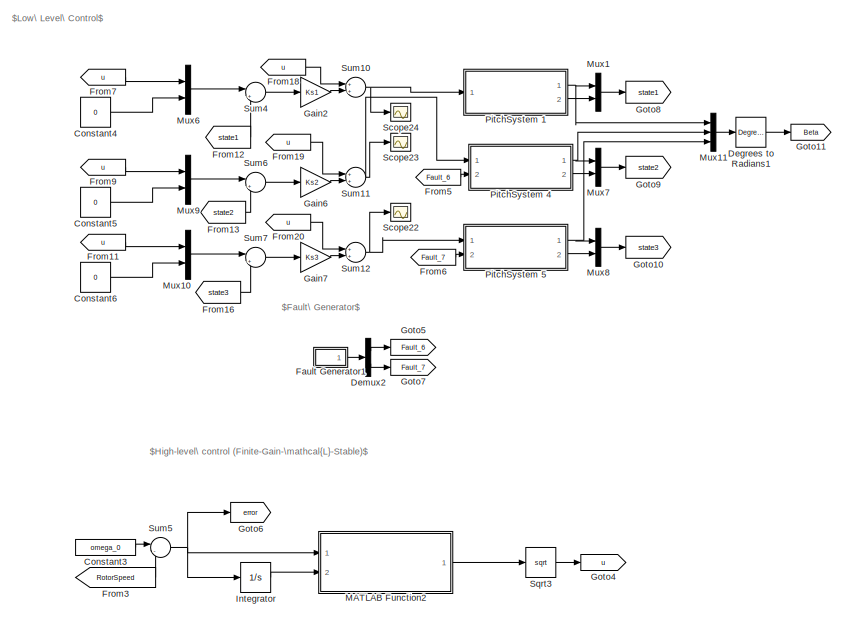
[diagram: root canvas - part 1/2, left side, full height]
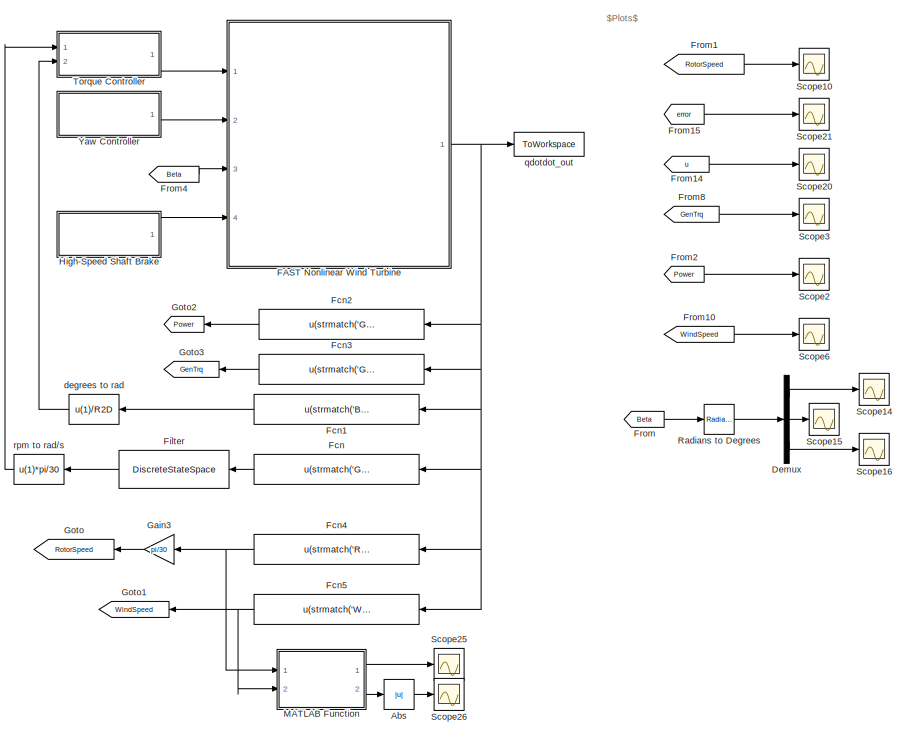
[diagram: root canvas - part 2/2, right side, full height]
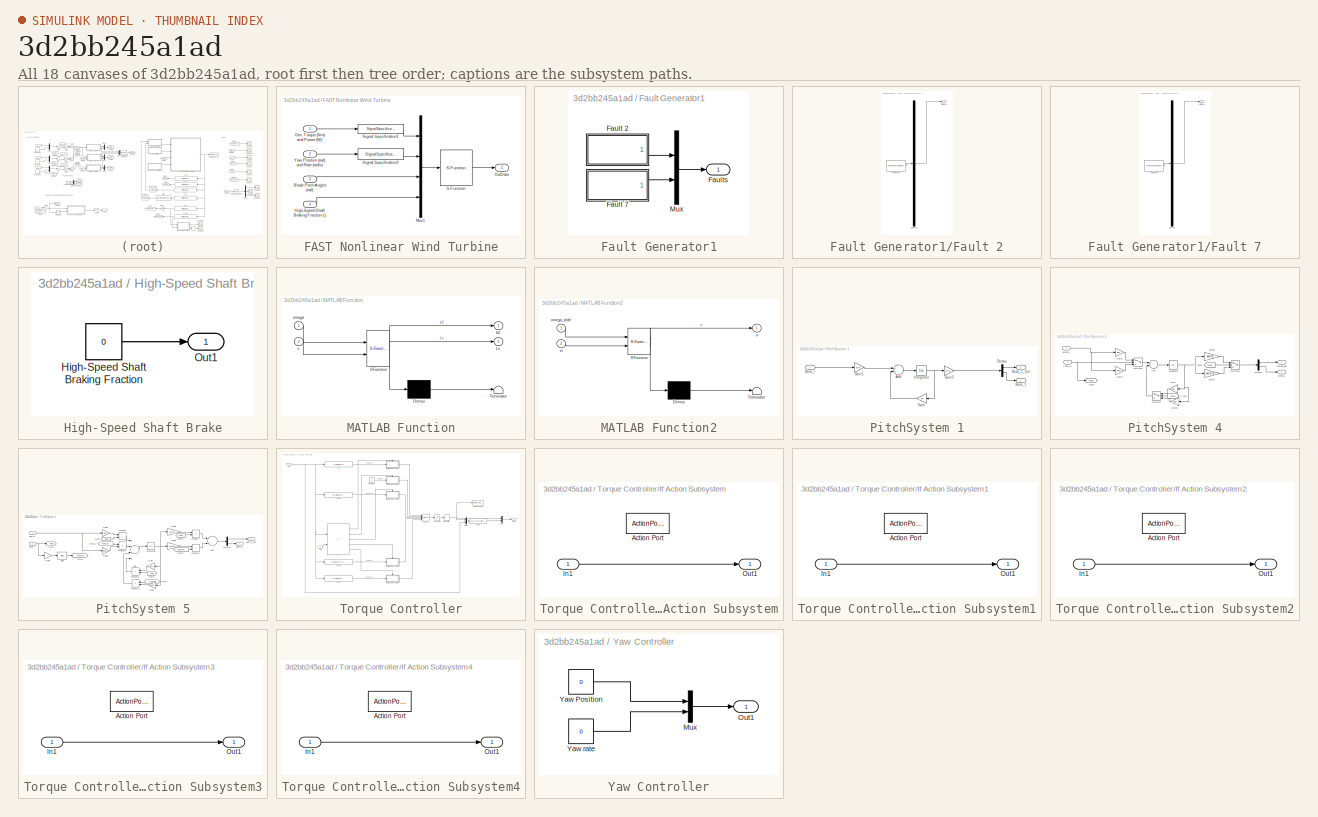
[diagram: thumbnail index - all 18 canvases of the model, root first then tree order]
MODEL slx_3d2bb245a1ad
KIND model
CONFIG AbsTol = auto
CONFIG EnableMultiTasking = on
CONFIG FixedStep = DT
CONFIG MaxStep = DT
CONFIG MinStep = auto
CONFIG RelTol = 1e-3
CONFIG SampleTimeConstraint = Unconstrained
CONFIG Solver = ode4
CONFIG SolverName = ode4
CONFIG StartTime = 0.0
CONFIG StopTime = 700
BLOCK [Abs] Abs
  SaturateOnIntegerOverflow = off
BLOCK [Constant] Constant3
  Value = omega_0
BLOCK [Constant] Constant4
  Value = 0
BLOCK [Constant] Constant5
  Value = 0
BLOCK [Constant] Constant6
  Value = 0
BLOCK [Reference] Degrees to Radians1  REF=simulink_extras/Transformations/Degrees to
Radians
  Ports = [1, 1]
  SourceBlock = simulink_extras/Transformations/Degrees to\nRadians
  SourceProductBaseCode = SL
  SourceProductName = Simulink
  SourceType = DegreesToRadians
BLOCK [Demux] Demux
  DisplayOption = bar
  Outputs = 3
  Ports = [1, 3]
BLOCK [Demux] Demux2
  DisplayOption = bar
  Outputs = 2
  Ports = [1, 2]
BLOCK [SubSystem] FAST Nonlinear Wind Turbine
  Ports = [4, 1]
  RequestExecContextInheritance = off
BLOCK [Inport] FAST Nonlinear Wind Turbine/Blade Pitch Angles (rad)
  IconDisplay = Port number
  Port = 3
BLOCK [Inport] FAST Nonlinear Wind Turbine/Gen. Torque (Nm) and Power (W)
  IconDisplay = Port number
BLOCK [Inport] FAST Nonlinear Wind Turbine/High-Speed Shaft Braking Fraction (-)
  IconDisplay = Port number
  Port = 4
BLOCK [Mux] FAST Nonlinear Wind Turbine/Mux1
  DisplayOption = bar
  Ports = [4, 1]
BLOCK [Outport] FAST Nonlinear Wind Turbine/OutData
  IconDisplay = Port number
  VectorParamsAs1DForOutWhenUnconnected = off
BLOCK [S-Function] FAST Nonlinear Wind Turbine/S-Function
  EnableBusSupport = off
  FunctionName = FAST_SFunc
  Parameters = FAST_InputFileName, TMax, 0
  Ports = [1, 1]
  SFcnIsStateOwnerBlock = off
  SFunctionDeploymentMode = off
BLOCK [SignalSpecification] FAST Nonlinear Wind Turbine/Signal Specification1
  Dimensions = 2
  OutDataTypeStr = double
  SignalType = real
BLOCK [SignalSpecification] FAST Nonlinear Wind Turbine/Signal Specification2
  Dimensions = 2
  OutDataTypeStr = double
  SignalType = real
BLOCK [Inport] FAST Nonlinear Wind Turbine/Yaw Position (rad) and Rate (rad//s)
  IconDisplay = Port number
  Port = 2
BLOCK [SubSystem] Fault Generator1
  Ports = [0, 1]
  RequestExecContextInheritance = off
BLOCK [SubSystem] Fault Generator1/Fault 2
  ClipboardFcn = sigbuilder_block('clipboard');
  CloseFcn = sigbuilder_block('close');
  ContinueFcn = sigbuilder_block('continue');
  CopyFcn = sigbuilder_block('copy');
  DeleteFcn = sigbuilder_block('delete');
  LoadFcn = sigbuilder_block('load');
  MaskHideContents = on
  ModelCloseFcn = sigbuilder_block('modelClose');
  NameChangeFcn = sigbuilder_block('namechange');
  OpenFcn = sigbuilder_block('open',[232.8 23.4 550.8 400.2 ]);
  PauseFcn = sigbuilder_block('pause');
  Ports = [0, 1]
  PreSaveFcn = sigbuilder_block('preSave');
  RequestExecContextInheritance = off
  StartFcn = sigbuilder_block('start');
  StopFcn = sigbuilder_block('stop');
  Tag = STV Subsys
BLOCK [Demux] Fault Generator1/Fault 2/Demux
  Outputs = 1
  Ports = [1, 1]
  Tag = STV Demux
BLOCK [FromWorkspace] Fault Generator1/Fault 2/FromWs
  SampleTime = 0
  Tag = STV FromWs
  VariableName = tuvar
  ZeroCross = on
BLOCK [Outport] Fault Generator1/Fault 2/Signal 1
  IconDisplay = Port number
  Tag = STV Outport
BLOCK [SubSystem] Fault Generator1/Fault 7
  ClipboardFcn = sigbuilder_block('clipboard');
  CloseFcn = sigbuilder_block('close');
  ContinueFcn = sigbuilder_block('continue');
  CopyFcn = sigbuilder_block('copy');
  DeleteFcn = sigbuilder_block('delete');
  LoadFcn = sigbuilder_block('load');
  MaskHideContents = on
  ModelCloseFcn = sigbuilder_block('modelClose');
  NameChangeFcn = sigbuilder_block('namechange');
  OpenFcn = sigbuilder_block('open',[437.6 199.2 550.4 400 ]);
  PauseFcn = sigbuilder_block('pause');
  Ports = [0, 1]
  PreSaveFcn = sigbuilder_block('preSave');
  RequestExecContextInheritance = off
  StartFcn = sigbuilder_block('start');
  StopFcn = sigbuilder_block('stop');
  Tag = STV Subsys
BLOCK [Demux] Fault Generator1/Fault 7/Demux
  Outputs = 1
  Ports = [1, 1]
  Tag = STV Demux
BLOCK [FromWorkspace] Fault Generator1/Fault 7/FromWs
  SampleTime = 0
  Tag = STV FromWs
  VariableName = tuvar
  ZeroCross = on
BLOCK [Outport] Fault Generator1/Fault 7/Signal 1
  IconDisplay = Port number
  Tag = STV Outport
BLOCK [Outport] Fault Generator1/Faults
  IconDisplay = Port number
BLOCK [Mux] Fault Generator1/Mux
  DisplayOption = bar
  Inputs = 2
  Ports = [2, 1]
BLOCK [Fcn] Fcn
  Expr = u(strmatch('GenSpeed',OutList))
BLOCK [Fcn] Fcn1
  Expr = u(strmatch('BldPitch1',OutList))
BLOCK [Fcn] Fcn2
  Expr = u(strmatch('GenPwr',OutList))
BLOCK [Fcn] Fcn3
  Expr = u(strmatch('GenTq',OutList))
BLOCK [Fcn] Fcn4
  Expr = u(strmatch('RotSpeed',OutList))
BLOCK [Fcn] Fcn5
  Expr = u(strmatch('Wind1VelX',OutList))
BLOCK [DiscreteStateSpace] Filter
  A = Alpha
  B = 1 - Alpha
  C = Alpha
  D = 1 - Alpha
  InitialCondition = wgInitial
  SampleTime = -1
BLOCK [From] From
  GotoTag = Beta
BLOCK [From] From1
  GotoTag = RotorSpeed
BLOCK [From] From10
  GotoTag = WindSpeed
BLOCK [From] From11
  GotoTag = u
BLOCK [From] From12
  GotoTag = state1
BLOCK [From] From13
  GotoTag = state2
BLOCK [From] From14
  GotoTag = u
BLOCK [From] From15
  GotoTag = error
BLOCK [From] From16
  GotoTag = state3
BLOCK [From] From18
  GotoTag = u
BLOCK [From] From19
  GotoTag = u
BLOCK [From] From2
  GotoTag = Power
BLOCK [From] From20
  GotoTag = u
BLOCK [From] From3
  GotoTag = RotorSpeed
BLOCK [From] From4
  GotoTag = Beta
BLOCK [From] From5
  GotoTag = Fault_6
BLOCK [From] From6
  GotoTag = Fault_7
BLOCK [From] From7
  GotoTag = u
BLOCK [From] From8
  GotoTag = GenTrq
BLOCK [From] From9
  GotoTag = u
BLOCK [Gain] Gain2
  Gain = Ks1
  Multiplication = Matrix(K*u) (u vector)
  OutDataTypeStr = Inherit: Inherit via internal rule
  ParamDataTypeStr = Inherit: Inherit via internal rule
  SaturateOnIntegerOverflow = off
BLOCK [Gain] Gain3
  Gain = pi/30
  OutDataTypeStr = Inherit: Inherit via internal rule
  ParamDataTypeStr = Inherit: Inherit via internal rule
  SaturateOnIntegerOverflow = off
BLOCK [Gain] Gain6
  Gain = Ks2
  Multiplication = Matrix(K*u) (u vector)
  OutDataTypeStr = Inherit: Inherit via internal rule
  ParamDataTypeStr = Inherit: Inherit via internal rule
  SaturateOnIntegerOverflow = off
BLOCK [Gain] Gain7
  Gain = Ks3
  Multiplication = Matrix(K*u) (u vector)
  OutDataTypeStr = Inherit: Inherit via internal rule
  ParamDataTypeStr = Inherit: Inherit via internal rule
  SaturateOnIntegerOverflow = off
BLOCK [Goto] Goto
  GotoTag = RotorSpeed
BLOCK [Goto] Goto1
  GotoTag = WindSpeed
BLOCK [Goto] Goto10
  GotoTag = state3
BLOCK [Goto] Goto11
  GotoTag = Beta
BLOCK [Goto] Goto2
  GotoTag = Power
BLOCK [Goto] Goto3
  GotoTag = GenTrq
BLOCK [Goto] Goto4
  GotoTag = u
BLOCK [Goto] Goto5
  GotoTag = Fault_6
BLOCK [Goto] Goto6
  GotoTag = error
BLOCK [Goto] Goto7
  GotoTag = Fault_7
BLOCK [Goto] Goto8
  GotoTag = state1
BLOCK [Goto] Goto9
  GotoTag = state2
BLOCK [SubSystem] High-Speed Shaft Brake
  Ports = [0, 1]
  RequestExecContextInheritance = off
BLOCK [Constant] High-Speed Shaft Brake/High-Speed Shaft Braking Fraction
  Value = 0
BLOCK [Outport] High-Speed Shaft Brake/Out1
  IconDisplay = Port number
  VectorParamsAs1DForOutWhenUnconnected = off
BLOCK [Integrator] Integrator
  Ports = [1, 1]
BLOCK [SubSystem] MATLAB Function
  ErrorFcn = Stateflow.Translate.translate
  PermitHierarchicalResolution = ExplicitOnly
  Ports = [2, 2]
  RequestExecContextInheritance = off
  SFBlockType = MATLAB Function
  TreatAsAtomicUnit = on
BLOCK [Demux] MATLAB Function/ Demux 
  Outputs = 1
  Ports = [1, 1]
BLOCK [S-Function] MATLAB Function/ SFunction 
  EnableBusSupport = on
  FunctionName = sf_sfun
  Parameters = J,c,m1,m2,m3
  PortCounts = [2 3]
  Ports = [2, 3]
  SFcnIsStateOwnerBlock = off
  SFunctionDeploymentMode = off
  Tag = Stateflow S-Function 3
BLOCK [Terminator] MATLAB Function/ Terminator 
BLOCK [Outport] MATLAB Function/Lv
  IconDisplay = Port number
  Port = 2
BLOCK [Outport] MATLAB Function/b2
  IconDisplay = Port number
BLOCK [Inport] MATLAB Function/omega
  IconDisplay = Port number
BLOCK [Inport] MATLAB Function/v
  IconDisplay = Port number
  Port = 2
BLOCK [SubSystem] MATLAB Function2
  ErrorFcn = Stateflow.Translate.translate
  PermitHierarchicalResolution = ExplicitOnly
  Ports = [2, 1]
  RequestExecContextInheritance = off
  SFBlockType = MATLAB Function
  TreatAsAtomicUnit = on
BLOCK [Demux] MATLAB Function2/ Demux 
  Outputs = 1
  Ports = [1, 1]
BLOCK [S-Function] MATLAB Function2/ SFunction 
  EnableBusSupport = on
  FunctionName = sf_sfun
  Parameters = ki,kp,phi_0,phi_bar
  PortCounts = [2 2]
  Ports = [2, 2]
  SFcnIsStateOwnerBlock = off
  SFunctionDeploymentMode = off
  Tag = Stateflow S-Function 2
BLOCK [Terminator] MATLAB Function2/ Terminator 
BLOCK [Inport] MATLAB Function2/ei
  IconDisplay = Port number
  Port = 2
BLOCK [Inport] MATLAB Function2/omega_tilde
  IconDisplay = Port number
BLOCK [Outport] MATLAB Function2/u
  IconDisplay = Port number
BLOCK [Mux] Mux1
  DisplayOption = bar
  Inputs = 2
  Ports = [2, 1]
BLOCK [Mux] Mux10
  DisplayOption = bar
  Inputs = 2
  Ports = [2, 1]
BLOCK [Mux] Mux11
  DisplayOption = bar
  Inputs = 3
  Ports = [3, 1]
BLOCK [Mux] Mux6
  DisplayOption = bar
  Inputs = 2
  Ports = [2, 1]
BLOCK [Mux] Mux7
  DisplayOption = bar
  Inputs = 2
  Ports = [2, 1]
BLOCK [Mux] Mux8
  DisplayOption = bar
  Inputs = 2
  Ports = [2, 1]
BLOCK [Mux] Mux9
  DisplayOption = bar
  Inputs = 2
  Ports = [2, 1]
BLOCK [SubSystem] PitchSystem 1
  Ports = [1, 2]
  RequestExecContextInheritance = off
BLOCK [Sum] PitchSystem 1/Add
  InputSameDT = off
  OutDataTypeStr = Inherit: Inherit via internal rule
  Ports = [2, 1]
  SaturateOnIntegerOverflow = off
BLOCK [Outport] PitchSystem 1/Beta_1 
  IconDisplay = Port number
BLOCK [Outport] PitchSystem 1/Beta_1_dot
  IconDisplay = Port number
  Port = 2
BLOCK [Inport] PitchSystem 1/Beta_r
  IconDisplay = Port number
BLOCK [Demux] PitchSystem 1/Demux
  DisplayOption = bar
  Outputs = 2
  Ports = [1, 2]
BLOCK [Gain] PitchSystem 1/Gain
  Gain = Apb
  Multiplication = Matrix(K*u)
  OutDataTypeStr = Inherit: Inherit via internal rule
  ParamDataTypeStr = Inherit: Inherit via internal rule
  SaturateOnIntegerOverflow = off
BLOCK [Gain] PitchSystem 1/Gain1
  Gain = Bpb
  Multiplication = Matrix(K*u)
  OutDataTypeStr = Inherit: Inherit via internal rule
  ParamDataTypeStr = Inherit: Inherit via internal rule
  SaturateOnIntegerOverflow = off
BLOCK [Gain] PitchSystem 1/Gain3
  Gain = wn^2
  OutDataTypeStr = Inherit: Inherit via internal rule
  ParamDataTypeStr = Inherit: Inherit via internal rule
  SaturateOnIntegerOverflow = off
BLOCK [Integrator] PitchSystem 1/Integrator
  Ports = [1, 1]
BLOCK [SubSystem] PitchSystem 4
  Ports = [2, 2]
  RequestExecContextInheritance = off
BLOCK [Sum] PitchSystem 4/Add
  InputSameDT = off
  OutDataTypeStr = Inherit: Inherit via internal rule
  Ports = [2, 1]
  SaturateOnIntegerOverflow = off
BLOCK [Outport] PitchSystem 4/Beta2 
  IconDisplay = Port number
BLOCK [Outport] PitchSystem 4/Beta2_dot 
  IconDisplay = Port number
  Port = 2
BLOCK [Inport] PitchSystem 4/Beta_r
  IconDisplay = Port number
BLOCK [Demux] PitchSystem 4/Demux
  DisplayOption = bar
  Outputs = 2
  Ports = [1, 2]
BLOCK [Inport] PitchSystem 4/Fault_6
  IconDisplay = Port number
  Port = 2
BLOCK [From] PitchSystem 4/From
  GotoTag = Fault6
BLOCK [From] PitchSystem 4/From2
  GotoTag = Fault6
BLOCK [Gain] PitchSystem 4/Gain
  Gain = Apb
  Multiplication = Matrix(K*u)
  OutDataTypeStr = Inherit: Inherit via internal rule
  ParamDataTypeStr = Inherit: Inherit via internal rule
  SaturateOnIntegerOverflow = off
BLOCK [Gain] PitchSystem 4/Gain1
  Gain = Bpb
  Multiplication = Matrix(K*u)
  OutDataTypeStr = Inherit: Inherit via internal rule
  ParamDataTypeStr = Inherit: Inherit via internal rule
  SaturateOnIntegerOverflow = off
BLOCK [Gain] PitchSystem 4/Gain3
  Gain = Apb1
  Multiplication = Matrix(K*u)
  OutDataTypeStr = Inherit: Inherit via internal rule
  ParamDataTypeStr = Inherit: Inherit via internal rule
  SaturateOnIntegerOverflow = off
BLOCK [Gain] PitchSystem 4/Gain4
  Gain = Bpb1
  Multiplication = Matrix(K*u)
  OutDataTypeStr = Inherit: Inherit via internal rule
  ParamDataTypeStr = Inherit: Inherit via internal rule
  SaturateOnIntegerOverflow = off
BLOCK [Gain] PitchSystem 4/Gain6
  Gain = wn^2
  OutDataTypeStr = Inherit: Inherit via internal rule
  ParamDataTypeStr = Inherit: Inherit via internal rule
  SaturateOnIntegerOverflow = off
BLOCK [Gain] PitchSystem 4/Gain7
  Gain = wn2^2
  OutDataTypeStr = Inherit: Inherit via internal rule
  ParamDataTypeStr = Inherit: Inherit via internal rule
  SaturateOnIntegerOverflow = off
BLOCK [Goto] PitchSystem 4/Goto
  GotoTag = Fault6
BLOCK [Integrator] PitchSystem 4/Integrator
  Ports = [1, 1]
BLOCK [Switch] PitchSystem 4/Switch1
  InputSameDT = off
  SaturateOnIntegerOverflow = off
  Threshold = 0.5
BLOCK [Switch] PitchSystem 4/Switch2
  InputSameDT = off
  SaturateOnIntegerOverflow = off
  Threshold = 0.5
BLOCK [Switch] PitchSystem 4/Switch4
  InputSameDT = off
  SaturateOnIntegerOverflow = off
  Threshold = 0.5
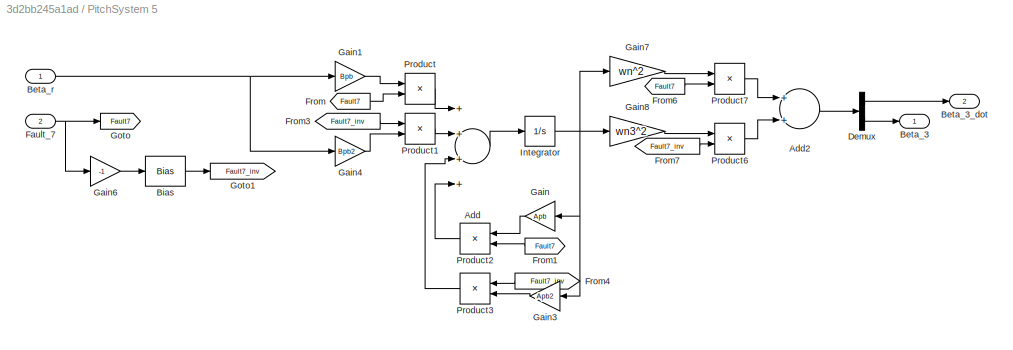
BLOCK [SubSystem] PitchSystem 5
  Ports = [2, 2]
  RequestExecContextInheritance = off
BLOCK [Sum] PitchSystem 5/Add
  InputSameDT = off
  Inputs = ++++
  OutDataTypeStr = Inherit: Inherit via internal rule
  Ports = [4, 1]
  SaturateOnIntegerOverflow = off
BLOCK [Sum] PitchSystem 5/Add2
  InputSameDT = off
  OutDataTypeStr = Inherit: Inherit via internal rule
  Ports = [2, 1]
  SaturateOnIntegerOverflow = off
BLOCK [Outport] PitchSystem 5/Beta_3
  IconDisplay = Port number
BLOCK [Outport] PitchSystem 5/Beta_3_dot
  IconDisplay = Port number
  Port = 2
BLOCK [Inport] PitchSystem 5/Beta_r
  IconDisplay = Port number
BLOCK [Bias] PitchSystem 5/Bias
  Bias = 1
  SaturateOnIntegerOverflow = off
BLOCK [Demux] PitchSystem 5/Demux
  DisplayOption = bar
  Outputs = 2
  Ports = [1, 2]
BLOCK [Inport] PitchSystem 5/Fault_7
  IconDisplay = Port number
  Port = 2
BLOCK [From] PitchSystem 5/From
  GotoTag = Fault7
BLOCK [From] PitchSystem 5/From1
  GotoTag = Fault7
BLOCK [From] PitchSystem 5/From3
  GotoTag = Fault7_inv
BLOCK [From] PitchSystem 5/From4
  GotoTag = Fault7_inv
BLOCK [From] PitchSystem 5/From6
  GotoTag = Fault7
BLOCK [From] PitchSystem 5/From7
  GotoTag = Fault7_inv
BLOCK [Gain] PitchSystem 5/Gain
  Gain = Apb
  Multiplication = Matrix(K*u)
  OutDataTypeStr = Inherit: Inherit via internal rule
  ParamDataTypeStr = Inherit: Inherit via internal rule
  SaturateOnIntegerOverflow = off
BLOCK [Gain] PitchSystem 5/Gain1
  Gain = Bpb
  Multiplication = Matrix(K*u)
  OutDataTypeStr = Inherit: Inherit via internal rule
  ParamDataTypeStr = Inherit: Inherit via internal rule
  SaturateOnIntegerOverflow = off
BLOCK [Gain] PitchSystem 5/Gain3
  Gain = Apb2
  Multiplication = Matrix(K*u)
  OutDataTypeStr = Inherit: Inherit via internal rule
  ParamDataTypeStr = Inherit: Inherit via internal rule
  SaturateOnIntegerOverflow = off
BLOCK [Gain] PitchSystem 5/Gain4
  Gain = Bpb2
  Multiplication = Matrix(K*u)
  OutDataTypeStr = Inherit: Inherit via internal rule
  ParamDataTypeStr = Inherit: Inherit via internal rule
  SaturateOnIntegerOverflow = off
BLOCK [Gain] PitchSystem 5/Gain6
  Gain = -1
  OutDataTypeStr = Inherit: Inherit via internal rule
  ParamDataTypeStr = Inherit: Inherit via internal rule
  SaturateOnIntegerOverflow = off
BLOCK [Gain] PitchSystem 5/Gain7
  Gain = wn^2
  OutDataTypeStr = Inherit: Inherit via internal rule
  ParamDataTypeStr = Inherit: Inherit via internal rule
  SaturateOnIntegerOverflow = off
BLOCK [Gain] PitchSystem 5/Gain8
  Gain = wn3^2
  OutDataTypeStr = Inherit: Inherit via internal rule
  ParamDataTypeStr = Inherit: Inherit via internal rule
  SaturateOnIntegerOverflow = off
BLOCK [Goto] PitchSystem 5/Goto
  GotoTag = Fault7
BLOCK [Goto] PitchSystem 5/Goto1
  GotoTag = Fault7_inv
BLOCK [Integrator] PitchSystem 5/Integrator
  Ports = [1, 1]
BLOCK [Product] PitchSystem 5/Product
  InputSameDT = off
  OutDataTypeStr = Inherit: Inherit via internal rule
  Ports = [2, 1]
  SaturateOnIntegerOverflow = off
BLOCK [Product] PitchSystem 5/Product1
  InputSameDT = off
  OutDataTypeStr = Inherit: Inherit via internal rule
  Ports = [2, 1]
  SaturateOnIntegerOverflow = off
BLOCK [Product] PitchSystem 5/Product2
  InputSameDT = off
  OutDataTypeStr = Inherit: Inherit via internal rule
  Ports = [2, 1]
  SaturateOnIntegerOverflow = off
BLOCK [Product] PitchSystem 5/Product3
  InputSameDT = off
  OutDataTypeStr = Inherit: Inherit via internal rule
  Ports = [2, 1]
  SaturateOnIntegerOverflow = off
BLOCK [Product] PitchSystem 5/Product6
  InputSameDT = off
  OutDataTypeStr = Inherit: Inherit via internal rule
  Ports = [2, 1]
  SaturateOnIntegerOverflow = off
BLOCK [Product] PitchSystem 5/Product7
  InputSameDT = off
  OutDataTypeStr = Inherit: Inherit via internal rule
  Ports = [2, 1]
  SaturateOnIntegerOverflow = off
BLOCK [Reference] Radians to Degrees  REF=simulink_extras/Transformations/Radians
to Degrees
  Ports = [1, 1]
  SourceBlock = simulink_extras/Transformations/Radians\nto Degrees
  SourceProductBaseCode = SL
  SourceProductName = Simulink
  SourceType = RadiansToDegrees
BLOCK [Scope] Scope10
  Floating = off
  NumInputPorts = 1
  Ports = [1]
  ScopeSpecificationString = Simulink.scopes.TimeScopeBlockCfg('CurrentConfiguration', extmgr.ConfigurationSet(extmgr.Configuration('Core','General UI',true),extmgr.Configuration('Core','Source UI',true),extmgr.Configuration('Sources','WiredSimulink',true,'DataLoggingVariableName','Rs3_gstep','DataLogging',true,'DataLoggingSaveFormat','Array'),extmgr.Configuration('Visuals','Time Domain',true,'SerializedDisplays',{struct('Min...<+1485ch>
BLOCK [Scope] Scope14
  Floating = off
  NumInputPorts = 1
  Ports = [1]
  ScopeSpecificationString = Simulink.scopes.TimeScopeBlockCfg('CurrentConfiguration', extmgr.ConfigurationSet(extmgr.Configuration('Core','General UI',true),extmgr.Configuration('Core','Source UI',true),extmgr.Configuration('Sources','WiredSimulink',true,'DataLoggingVariableName','beta1_gamma3step','DataLogging',true,'DataLoggingSaveFormat','Array'),extmgr.Configuration('Visuals','Time Domain',true,'SerializedDisplays',{stru...<+1500ch>
BLOCK [Scope] Scope15
  Floating = off
  NumInputPorts = 1
  Ports = [1]
  ScopeSpecificationString = Simulink.scopes.TimeScopeBlockCfg('CurrentConfiguration', extmgr.ConfigurationSet(extmgr.Configuration('Core','General UI',true),extmgr.Configuration('Core','Source UI',true),extmgr.Configuration('Sources','WiredSimulink',true,'DataLoggingVariableName','beta2_gamma3step','DataLogging',true,'DataLoggingSaveFormat','Array'),extmgr.Configuration('Visuals','Time Domain',true,'SerializedDisplays',{stru...<+1500ch>
BLOCK [Scope] Scope16
  Floating = off
  NumInputPorts = 1
  Ports = [1]
  ScopeSpecificationString = Simulink.scopes.TimeScopeBlockCfg('CurrentConfiguration', extmgr.ConfigurationSet(extmgr.Configuration('Core','General UI',true),extmgr.Configuration('Core','Source UI',true),extmgr.Configuration('Sources','WiredSimulink',true,'DataLoggingVariableName','beta3_gamma3step','DataLogging',true,'DataLoggingSaveFormat','Array'),extmgr.Configuration('Visuals','Time Domain',true,'SerializedDisplays',{stru...<+1481ch>
BLOCK [Scope] Scope2
  Floating = off
  NumInputPorts = 1
  Ports = [1]
  ScopeSpecificationString = Simulink.scopes.TimeScopeBlockCfg('CurrentConfiguration', extmgr.ConfigurationSet(extmgr.Configuration('Core','General UI',true),extmgr.Configuration('Core','Source UI',true),extmgr.Configuration('Sources','WiredSimulink',true,'DataLoggingVariableName','pwr3_gstep','DataLogging',true,'DataLoggingSaveFormat','Array'),extmgr.Configuration('Visuals','Time Domain',true,'SerializedDisplays',{struct('Mi...<+1505ch>
BLOCK [Scope] Scope20
  Floating = off
  NumInputPorts = 1
  Ports = [1]
  ScopeSpecificationString = Simulink.scopes.TimeScopeBlockCfg('CurrentConfiguration', extmgr.ConfigurationSet(extmgr.Configuration('Core','General UI',true),extmgr.Configuration('Core','Source UI',true),extmgr.Configuration('Sources','WiredSimulink',true,'DataLoggingVariableName','pitch3_gstep','DataLogging',true,'DataLoggingSaveFormat','Array'),extmgr.Configuration('Visuals','Time Domain',true,'SerializedDisplays',{struct('...<+1494ch>
BLOCK [Scope] Scope21
  Floating = off
  NumInputPorts = 1
  Ports = [1]
  ScopeSpecificationString = Simulink.scopes.TimeScopeBlockCfg('CurrentConfiguration', extmgr.ConfigurationSet(extmgr.Configuration('Core','General UI',true),extmgr.Configuration('Core','Source UI',true),extmgr.Configuration('Sources','WiredSimulink',true,'DataLoggingVariableName','eg3step','DataLogging',true,'DataLoggingSaveFormat','Array'),extmgr.Configuration('Visuals','Time Domain',true,'SerializedDisplays',{struct('MinYL...<+1465ch>
BLOCK [Scope] Scope22
  Floating = off
  NumInputPorts = 1
  Ports = [1]
  ScopeSpecificationString = Simulink.scopes.TimeScopeBlockCfg('CurrentConfiguration', extmgr.ConfigurationSet(extmgr.Configuration('Core','General UI',true),extmgr.Configuration('Core','Source UI',true),extmgr.Configuration('Sources','WiredSimulink',true,'DataLoggingVariableName','ScopeData1'),extmgr.Configuration('Visuals','Time Domain',true,'SerializedDisplays',{struct('MinYLimReal','0.8994','MaxYLimReal','24.00634','YLabe...<+1410ch>
BLOCK [Scope] Scope23
  Floating = off
  NumInputPorts = 1
  Ports = [1]
  ScopeSpecificationString = Simulink.scopes.TimeScopeBlockCfg('CurrentConfiguration', extmgr.ConfigurationSet(extmgr.Configuration('Core','General UI',true),extmgr.Configuration('Core','Source UI',true),extmgr.Configuration('Sources','WiredSimulink',true,'DataLoggingVariableName','ScopeData2'),extmgr.Configuration('Visuals','Time Domain',true,'SerializedDisplays',{struct('MinYLimReal','-402.94608','MaxYLimReal','1010.89245',...<+1430ch>
BLOCK [Scope] Scope24
  Floating = off
  NumInputPorts = 1
  Ports = [1]
  ScopeSpecificationString = Simulink.scopes.TimeScopeBlockCfg('CurrentConfiguration', extmgr.ConfigurationSet(extmgr.Configuration('Core','General UI',true),extmgr.Configuration('Core','Source UI',true),extmgr.Configuration('Sources','WiredSimulink',true,'DataLoggingVariableName','ScopeData3'),extmgr.Configuration('Visuals','Time Domain',true,'SerializedDisplays',{struct('MinYLimReal','3.57671','MaxYLimReal','39.23565','YLab...<+1395ch>
BLOCK [Scope] Scope25
  Floating = off
  NumInputPorts = 1
  Ports = [1]
  ScopeSpecificationString = Simulink.scopes.TimeScopeBlockCfg('CurrentConfiguration', extmgr.ConfigurationSet(extmgr.Configuration('Core','General UI',true),extmgr.Configuration('Core','Source UI',true),extmgr.Configuration('Sources','WiredSimulink',true,'DataLoggingVariableName','ScopeData1'),extmgr.Configuration('Visuals','Time Domain',true,'SerializedDisplays',{struct('MinYLimReal','-0.00556','MaxYLimReal','0.02474','YLab...<+1450ch>
BLOCK [Scope] Scope26
  Floating = off
  NumInputPorts = 1
  Ports = [1]
  ScopeSpecificationString = Simulink.scopes.TimeScopeBlockCfg('CurrentConfiguration', extmgr.ConfigurationSet(extmgr.Configuration('Core','General UI',true),extmgr.Configuration('Core','Source UI',true),extmgr.Configuration('Sources','WiredSimulink',true,'DataLoggingVariableName','ScopeData2'),extmgr.Configuration('Visuals','Time Domain',true,'SerializedDisplays',{struct('MinYLimReal','0.17957','MaxYLimReal','2.51686','YLabe...<+1433ch>
BLOCK [Scope] Scope3
  Floating = off
  NumInputPorts = 1
  Ports = [1]
  ScopeSpecificationString = Simulink.scopes.TimeScopeBlockCfg('CurrentConfiguration', extmgr.ConfigurationSet(extmgr.Configuration('Core','General UI',true),extmgr.Configuration('Core','Source UI',true),extmgr.Configuration('Sources','WiredSimulink',true,'DataLoggingVariableName','gen3_gstep','DataLogging',true,'DataLoggingSaveFormat','Array'),extmgr.Configuration('Visuals','Time Domain',true,'SerializedDisplays',{struct('Mi...<+1493ch>
BLOCK [Scope] Scope6
  Floating = off
  NumInputPorts = 1
  Ports = [1]
  ScopeSpecificationString = Simulink.scopes.TimeScopeBlockCfg('CurrentConfiguration', extmgr.ConfigurationSet(extmgr.Configuration('Core','General UI',true),extmgr.Configuration('Core','Source UI',true),extmgr.Configuration('Sources','WiredSimulink',true,'DataLoggingVariableName','ScopeData5','DataLogging',true,'DataLoggingSaveFormat','Array'),extmgr.Configuration('Visuals','Time Domain',true,'SerializedDisplays',{struct('Mi...<+1493ch>
BLOCK [Sqrt] Sqrt3
BLOCK [Sum] Sum10
  InputSameDT = off
  OutDataTypeStr = Inherit: Inherit via internal rule
  Ports = [2, 1]
  SaturateOnIntegerOverflow = off
BLOCK [Sum] Sum11
  InputSameDT = off
  OutDataTypeStr = Inherit: Inherit via internal rule
  Ports = [2, 1]
  SaturateOnIntegerOverflow = off
BLOCK [Sum] Sum12
  InputSameDT = off
  OutDataTypeStr = Inherit: Inherit via internal rule
  Ports = [2, 1]
  SaturateOnIntegerOverflow = off
BLOCK [Sum] Sum4
  IconShape = round
  InputSameDT = off
  Inputs = |+-
  OutDataTypeStr = Inherit: Inherit via internal rule
  Ports = [2, 1]
  SaturateOnIntegerOverflow = off
BLOCK [Sum] Sum5
  IconShape = round
  InputSameDT = off
  Inputs = |-+
  OutDataTypeStr = Inherit: Inherit via internal rule
  Ports = [2, 1]
  SaturateOnIntegerOverflow = off
BLOCK [Sum] Sum6
  IconShape = round
  InputSameDT = off
  Inputs = |+-
  OutDataTypeStr = Inherit: Inherit via internal rule
  Ports = [2, 1]
  SaturateOnIntegerOverflow = off
BLOCK [Sum] Sum7
  IconShape = round
  InputSameDT = off
  Inputs = |+-
  OutDataTypeStr = Inherit: Inherit via internal rule
  Ports = [2, 1]
  SaturateOnIntegerOverflow = off
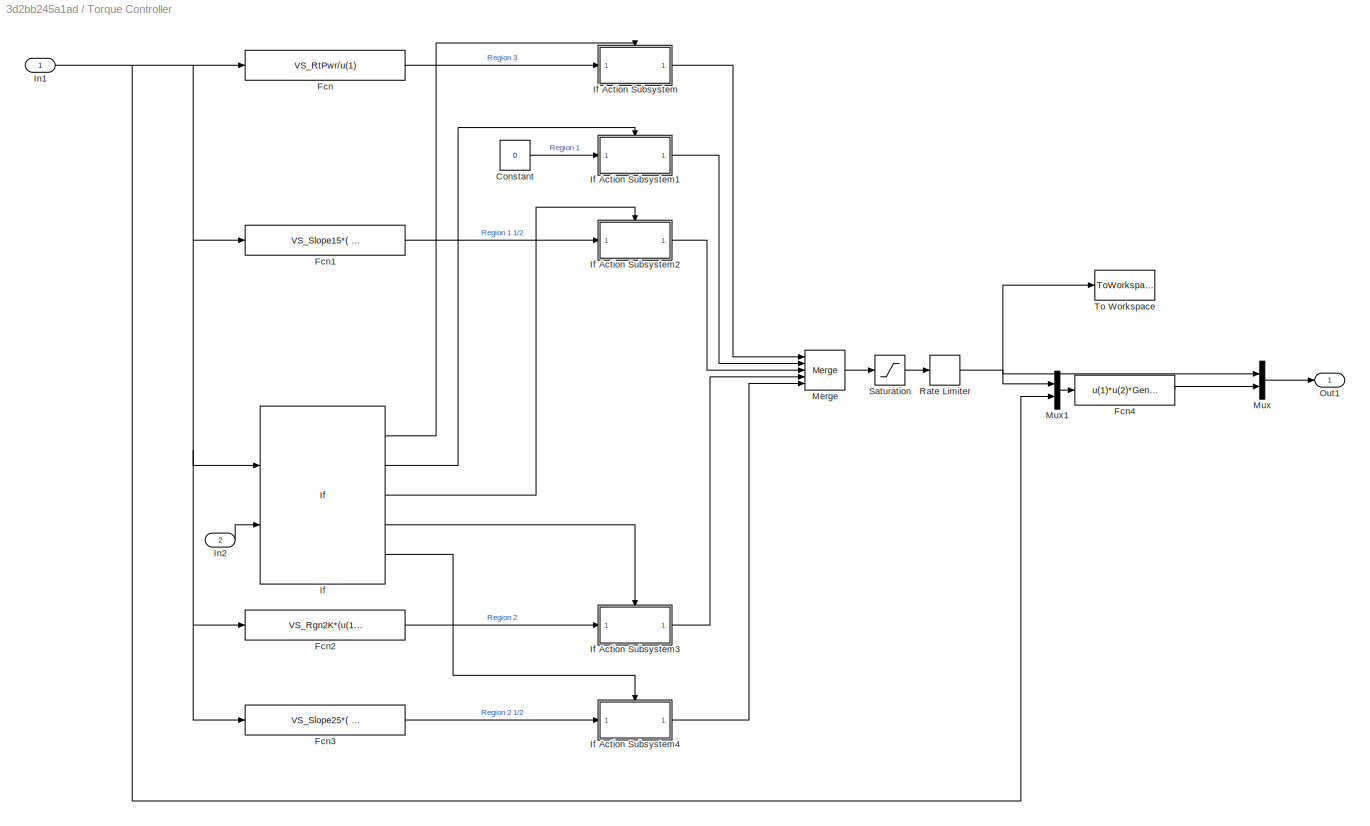
BLOCK [SubSystem] Torque Controller
  Ports = [2, 1]
  RequestExecContextInheritance = off
BLOCK [Constant] Torque Controller/Constant
  Value = 0
BLOCK [Fcn] Torque Controller/Fcn
  Expr = VS_RtPwr/u(1)
BLOCK [Fcn] Torque Controller/Fcn1
  Expr = VS_Slope15*( u(1) - VS_CtInSp )
BLOCK [Fcn] Torque Controller/Fcn2
  Expr = VS_Rgn2K*(u(1)^2)
BLOCK [Fcn] Torque Controller/Fcn3
  Expr = VS_Slope25*( u(1) - VS_SySp )
BLOCK [Fcn] Torque Controller/Fcn4
  Expr = u(1)*u(2)*GenEff/100
BLOCK [If] Torque Controller/If
  ElseIfExpressions = u1 <= VS_CtInSp, u1 <  VS_Rgn2Sp, u1 <  VS_TrGnSp
  IfExpression = (u1 >= VS_RtGnSp) | (u2 >= VS_Rgn3MP)
  NumInputs = 2
  Ports = [2, 5]
BLOCK [SubSystem] Torque Controller/If Action Subsystem
  Ports = [1, 1, 0, 0, 0, 0, 0, 1]
  RequestExecContextInheritance = off
  TreatAsAtomicUnit = on
BLOCK [ActionPort] Torque Controller/If Action Subsystem/Action Port
  ActionPortLabel = if((u1 >= VS_RtGnSp) | (u2 >= VS_Rgn3MP))
BLOCK [Inport] Torque Controller/If Action Subsystem/In1
  IconDisplay = Port number
BLOCK [Outport] Torque Controller/If Action Subsystem/Out1
  IconDisplay = Port number
  VectorParamsAs1DForOutWhenUnconnected = off
BLOCK [SubSystem] Torque Controller/If Action Subsystem1
  Ports = [1, 1, 0, 0, 0, 0, 0, 1]
  RequestExecContextInheritance = off
  TreatAsAtomicUnit = on
BLOCK [ActionPort] Torque Controller/If Action Subsystem1/Action Port
  ActionPortLabel = elseif(u1 <= VS_CtInSp)
BLOCK [Inport] Torque Controller/If Action Subsystem1/In1
  IconDisplay = Port number
BLOCK [Outport] Torque Controller/If Action Subsystem1/Out1
  IconDisplay = Port number
  VectorParamsAs1DForOutWhenUnconnected = off
BLOCK [SubSystem] Torque Controller/If Action Subsystem2
  Ports = [1, 1, 0, 0, 0, 0, 0, 1]
  RequestExecContextInheritance = off
  TreatAsAtomicUnit = on
BLOCK [ActionPort] Torque Controller/If Action Subsystem2/Action Port
  ActionPortLabel = elseif( u1 <  VS_Rgn2Sp)
BLOCK [Inport] Torque Controller/If Action Subsystem2/In1
  IconDisplay = Port number
BLOCK [Outport] Torque Controller/If Action Subsystem2/Out1
  IconDisplay = Port number
  VectorParamsAs1DForOutWhenUnconnected = off
BLOCK [SubSystem] Torque Controller/If Action Subsystem3
  Ports = [1, 1, 0, 0, 0, 0, 0, 1]
  RequestExecContextInheritance = off
  TreatAsAtomicUnit = on
BLOCK [ActionPort] Torque Controller/If Action Subsystem3/Action Port
  ActionPortLabel = elseif( u1 <  VS_TrGnSp)
BLOCK [Inport] Torque Controller/If Action Subsystem3/In1
  IconDisplay = Port number
BLOCK [Outport] Torque Controller/If Action Subsystem3/Out1
  IconDisplay = Port number
  VectorParamsAs1DForOutWhenUnconnected = off
BLOCK [SubSystem] Torque Controller/If Action Subsystem4
  Ports = [1, 1, 0, 0, 0, 0, 0, 1]
  RequestExecContextInheritance = off
  TreatAsAtomicUnit = on
BLOCK [ActionPort] Torque Controller/If Action Subsystem4/Action Port
  ActionPortLabel = else
BLOCK [Inport] Torque Controller/If Action Subsystem4/In1
  IconDisplay = Port number
BLOCK [Outport] Torque Controller/If Action Subsystem4/Out1
  IconDisplay = Port number
  VectorParamsAs1DForOutWhenUnconnected = off
BLOCK [Inport] Torque Controller/In1
  IconDisplay = Port number
BLOCK [Inport] Torque Controller/In2
  IconDisplay = Port number
  Port = 2
BLOCK [Merge] Torque Controller/Merge
  InitialOutput = TqInitial
  Inputs = 5
  Ports = [5, 1]
BLOCK [Mux] Torque Controller/Mux
  DisplayOption = bar
  Inputs = 2
  Ports = [2, 1]
BLOCK [Mux] Torque Controller/Mux1
  DisplayOption = bar
  Inputs = 2
  Ports = [2, 1]
BLOCK [Outport] Torque Controller/Out1
  IconDisplay = Port number
  VectorParamsAs1DForOutWhenUnconnected = off
BLOCK [RateLimiter] Torque Controller/Rate Limiter
  FallingSlewLimit = -VS_MaxRat
  RisingSlewLimit = VS_MaxRat
  SampleTimeMode = inherited
BLOCK [Saturate] Torque Controller/Saturation
  InputPortMap = u0
  LowerLimit = 0
  Ports = [1, 1]
  UpperLimit = VS_MaxTq
BLOCK [ToWorkspace] Torque Controller/To Workspace
  FixptAsFi = on
  MaxDataPoints = inf
  Ports = [1]
  SampleTime = -1
  SaveFormat = Timeseries
  VariableName = Teste
BLOCK [SubSystem] Yaw Controller
  Ports = [0, 1]
  RequestExecContextInheritance = off
BLOCK [Mux] Yaw Controller/Mux
  DisplayOption = bar
  Inputs = 2
  Ports = [2, 1]
BLOCK [Outport] Yaw Controller/Out1
  IconDisplay = Port number
  VectorParamsAs1DForOutWhenUnconnected = off
BLOCK [Constant] Yaw Controller/Yaw Position
  Value = 0
BLOCK [Constant] Yaw Controller/Yaw rate
  Value = 0
BLOCK [Fcn] degrees to rad
  Expr = u(1)/R2D
BLOCK [ToWorkspace] qdotdot_out
  MaxDataPoints = inf
  Ports = [1]
  SampleTime = -1
  VariableName = OutData
BLOCK [Fcn] rpm to rad//s
  Expr = u(1)*pi/30
ANNOTATION (root): $High-level\ control (Finite-Gain-\mathcal{L}-Stable)$
ANNOTATION (root): $Fault\ Generator$
ANNOTATION (root): $Low\ Level\ Control$
ANNOTATION (root): $Plots$
LINE Abs:1 -> Scope26:1
LINE Constant3:1 -> Sum5:1
LINE Constant4:1 -> Mux6:2
LINE Constant5:1 -> Mux9:2
LINE Constant6:1 -> Mux10:2
LINE Degrees to Radians1:1 -> Goto11:1
LINE Demux2:1 -> Goto5:1
LINE Demux2:2 -> Goto7:1
LINE Demux:1 -> Scope14:1
LINE Demux:2 -> Scope15:1
LINE Demux:3 -> Scope16:1
LINE FAST Nonlinear Wind Turbine/Blade Pitch Angles (rad):1 -> FAST Nonlinear Wind Turbine/Mux1:3
LINE FAST Nonlinear Wind Turbine/Gen. Torque (Nm) and Power (W):1 -> FAST Nonlinear Wind Turbine/Signal Specification1:1
LINE FAST Nonlinear Wind Turbine/High-Speed Shaft Braking Fraction (-):1 -> FAST Nonlinear Wind Turbine/Mux1:4
LINE FAST Nonlinear Wind Turbine/Mux1:1 -> FAST Nonlinear Wind Turbine/S-Function:1
LINE FAST Nonlinear Wind Turbine/S-Function:1 -> FAST Nonlinear Wind Turbine/OutData:1
LINE FAST Nonlinear Wind Turbine/Signal Specification1:1 -> FAST Nonlinear Wind Turbine/Mux1:1
LINE FAST Nonlinear Wind Turbine/Signal Specification2:1 -> FAST Nonlinear Wind Turbine/Mux1:2
LINE FAST Nonlinear Wind Turbine/Yaw Position (rad) and Rate (rad//s):1 -> FAST Nonlinear Wind Turbine/Signal Specification2:1
NET FAST Nonlinear Wind Turbine:1 -> Fcn1:1, Fcn2:1, Fcn3:1, Fcn4:1, Fcn5:1, Fcn:1, qdotdot_out:1
LINE Fault Generator1/Fault 2:1 -> Fault Generator1/Mux:1
LINE Fault Generator1/Fault 7:1 -> Fault Generator1/Mux:2
LINE Fault Generator1/Mux:1 -> Fault Generator1/Faults:1
LINE Fault Generator1:1 -> Demux2:1
LINE Fcn1:1 -> degrees to rad:1
LINE Fcn2:1 -> Goto2:1
LINE Fcn3:1 -> Goto3:1
NET Fcn4:1 -> Gain3:1, MATLAB Function:1
NET Fcn5:1 -> Goto1:1, MATLAB Function:2
LINE Fcn:1 -> Filter:1
LINE Filter:1 -> rpm to rad//s:1
LINE From10:1 -> Scope6:1
LINE From11:1 -> Mux10:1
LINE From12:1 -> Sum4:2
LINE From13:1 -> Sum6:2
LINE From14:1 -> Scope20:1
LINE From15:1 -> Scope21:1
LINE From16:1 -> Sum7:2
LINE From18:1 -> Sum10:1
LINE From19:1 -> Sum11:1
LINE From1:1 -> Scope10:1
LINE From20:1 -> Sum12:1
LINE From2:1 -> Scope2:1
LINE From3:1 -> Sum5:2
LINE From4:1 -> FAST Nonlinear Wind Turbine:3
LINE From5:1 -> PitchSystem 4:2
LINE From6:1 -> PitchSystem 5:2
LINE From7:1 -> Mux6:1
LINE From8:1 -> Scope3:1
LINE From9:1 -> Mux9:1
LINE From:1 -> Radians to Degrees:1
LINE Gain2:1 -> Sum10:2
LINE Gain3:1 -> Goto:1
LINE Gain6:1 -> Sum11:2
LINE Gain7:1 -> Sum12:2
LINE High-Speed Shaft Brake/High-Speed Shaft Braking Fraction:1 -> High-Speed Shaft Brake/Out1:1
LINE High-Speed Shaft Brake:1 -> FAST Nonlinear Wind Turbine:4
LINE Integrator:1 -> MATLAB Function2:2
LINE MATLAB Function2:1 -> Sqrt3:1
LINE MATLAB Function:1 -> Scope25:1
LINE MATLAB Function:2 -> Abs:1
LINE Mux10:1 -> Sum7:1
LINE Mux11:1 -> Degrees to Radians1:1
LINE Mux1:1 -> Goto8:1
LINE Mux6:1 -> Sum4:1
LINE Mux7:1 -> Goto9:1
LINE Mux8:1 -> Goto10:1
LINE Mux9:1 -> Sum6:1
LINE PitchSystem 1/Add:1 -> PitchSystem 1/Integrator:1
LINE PitchSystem 1/Beta_r:1 -> PitchSystem 1/Gain1:1
LINE PitchSystem 1/Demux:1 -> PitchSystem 1/Beta_1_dot:1
LINE PitchSystem 1/Demux:2 -> PitchSystem 1/Beta_1 :1
LINE PitchSystem 1/Gain1:1 -> PitchSystem 1/Add:1
LINE PitchSystem 1/Gain3:1 -> PitchSystem 1/Demux:1
LINE PitchSystem 1/Gain:1 -> PitchSystem 1/Add:2
NET PitchSystem 1/Integrator:1 -> PitchSystem 1/Gain3:1, PitchSystem 1/Gain:1
NET PitchSystem 1:1 -> Mux11:1, Mux1:1
LINE PitchSystem 1:2 -> Mux1:2
LINE PitchSystem 4/Add:1 -> PitchSystem 4/Integrator:1
NET PitchSystem 4/Beta_r:1 -> PitchSystem 4/Gain1:1, PitchSystem 4/Gain4:1
LINE PitchSystem 4/Demux:1 -> PitchSystem 4/Beta2_dot :1
LINE PitchSystem 4/Demux:2 -> PitchSystem 4/Beta2 :1
NET PitchSystem 4/Fault_6:1 -> PitchSystem 4/Goto:1, PitchSystem 4/Switch1:2
LINE PitchSystem 4/From2:1 -> PitchSystem 4/Switch4:2
LINE PitchSystem 4/From:1 -> PitchSystem 4/Switch2:2
LINE PitchSystem 4/Gain1:1 -> PitchSystem 4/Switch1:1
LINE PitchSystem 4/Gain3:1 -> PitchSystem 4/Switch2:3
LINE PitchSystem 4/Gain4:1 -> PitchSystem 4/Switch1:3
LINE PitchSystem 4/Gain6:1 -> PitchSystem 4/Switch4:1
LINE PitchSystem 4/Gain7:1 -> PitchSystem 4/Switch4:3
LINE PitchSystem 4/Gain:1 -> PitchSystem 4/Switch2:1
NET PitchSystem 4/Integrator:1 -> PitchSystem 4/Gain3:1, PitchSystem 4/Gain6:1, PitchSystem 4/Gain7:1, PitchSystem 4/Gain:1
LINE PitchSystem 4/Switch1:1 -> PitchSystem 4/Add:1
LINE PitchSystem 4/Switch2:1 -> PitchSystem 4/Add:2
LINE PitchSystem 4/Switch4:1 -> PitchSystem 4/Demux:1
NET PitchSystem 4:1 -> Mux11:2, Mux7:1
LINE PitchSystem 4:2 -> Mux7:2
LINE PitchSystem 5/Add2:1 -> PitchSystem 5/Demux:1
LINE PitchSystem 5/Add:1 -> PitchSystem 5/Integrator:1
NET PitchSystem 5/Beta_r:1 -> PitchSystem 5/Gain1:1, PitchSystem 5/Gain4:1
LINE PitchSystem 5/Bias:1 -> PitchSystem 5/Goto1:1
LINE PitchSystem 5/Demux:1 -> PitchSystem 5/Beta_3_dot:1
LINE PitchSystem 5/Demux:2 -> PitchSystem 5/Beta_3:1
NET PitchSystem 5/Fault_7:1 -> PitchSystem 5/Gain6:1, PitchSystem 5/Goto:1
LINE PitchSystem 5/From1:1 -> PitchSystem 5/Product2:2
LINE PitchSystem 5/From3:1 -> PitchSystem 5/Product1:1
LINE PitchSystem 5/From4:1 -> PitchSystem 5/Product3:1
LINE PitchSystem 5/From6:1 -> PitchSystem 5/Product7:2
LINE PitchSystem 5/From7:1 -> PitchSystem 5/Product6:2
LINE PitchSystem 5/From:1 -> PitchSystem 5/Product:2
LINE PitchSystem 5/Gain1:1 -> PitchSystem 5/Product:1
LINE PitchSystem 5/Gain3:1 -> PitchSystem 5/Product3:2
LINE PitchSystem 5/Gain4:1 -> PitchSystem 5/Product1:2
LINE PitchSystem 5/Gain6:1 -> PitchSystem 5/Bias:1
LINE PitchSystem 5/Gain7:1 -> PitchSystem 5/Product7:1
LINE PitchSystem 5/Gain8:1 -> PitchSystem 5/Product6:1
LINE PitchSystem 5/Gain:1 -> PitchSystem 5/Product2:1
NET PitchSystem 5/Integrator:1 -> PitchSystem 5/Gain3:1, PitchSystem 5/Gain7:1, PitchSystem 5/Gain8:1, PitchSystem 5/Gain:1
LINE PitchSystem 5/Product1:1 -> PitchSystem 5/Add:2
LINE PitchSystem 5/Product2:1 -> PitchSystem 5/Add:4
LINE PitchSystem 5/Product3:1 -> PitchSystem 5/Add:3
LINE PitchSystem 5/Product6:1 -> PitchSystem 5/Add2:2
LINE PitchSystem 5/Product7:1 -> PitchSystem 5/Add2:1
LINE PitchSystem 5/Product:1 -> PitchSystem 5/Add:1
NET PitchSystem 5:1 -> Mux11:3, Mux8:1
LINE PitchSystem 5:2 -> Mux8:2
LINE Radians to Degrees:1 -> Demux:1
LINE Sqrt3:1 -> Goto4:1
NET Sum10:1 -> PitchSystem 1:1, Scope24:1
NET Sum11:1 -> PitchSystem 4:1, Scope23:1
NET Sum12:1 -> PitchSystem 5:1, Scope22:1
LINE Sum4:1 -> Gain2:1
NET Sum5:1 -> Goto6:1, Integrator:1, MATLAB Function2:1
LINE Sum6:1 -> Gain6:1
LINE Sum7:1 -> Gain7:1
LINE Torque Controller/Constant:1 -> Torque Controller/If Action Subsystem1:1
LINE Torque Controller/Fcn1:1 -> Torque Controller/If Action Subsystem2:1
LINE Torque Controller/Fcn2:1 -> Torque Controller/If Action Subsystem3:1
LINE Torque Controller/Fcn3:1 -> Torque Controller/If Action Subsystem4:1
LINE Torque Controller/Fcn4:1 -> Torque Controller/Mux:2
LINE Torque Controller/Fcn:1 -> Torque Controller/If Action Subsystem:1
LINE Torque Controller/If Action Subsystem/In1:1 -> Torque Controller/If Action Subsystem/Out1:1
LINE Torque Controller/If Action Subsystem1/In1:1 -> Torque Controller/If Action Subsystem1/Out1:1
LINE Torque Controller/If Action Subsystem1:1 -> Torque Controller/Merge:2
LINE Torque Controller/If Action Subsystem2/In1:1 -> Torque Controller/If Action Subsystem2/Out1:1
LINE Torque Controller/If Action Subsystem2:1 -> Torque Controller/Merge:3
LINE Torque Controller/If Action Subsystem3/In1:1 -> Torque Controller/If Action Subsystem3/Out1:1
LINE Torque Controller/If Action Subsystem3:1 -> Torque Controller/Merge:4
LINE Torque Controller/If Action Subsystem4/In1:1 -> Torque Controller/If Action Subsystem4/Out1:1
LINE Torque Controller/If Action Subsystem4:1 -> Torque Controller/Merge:5
LINE Torque Controller/If Action Subsystem:1 -> Torque Controller/Merge:1
LINE Torque Controller/If:1 -> Torque Controller/If Action Subsystem:ifaction
LINE Torque Controller/If:2 -> Torque Controller/If Action Subsystem1:ifaction
LINE Torque Controller/If:3 -> Torque Controller/If Action Subsystem2:ifaction
LINE Torque Controller/If:4 -> Torque Controller/If Action Subsystem3:ifaction
LINE Torque Controller/If:5 -> Torque Controller/If Action Subsystem4:ifaction
NET Torque Controller/In1:1 -> Torque Controller/Fcn1:1, Torque Controller/Fcn2:1, Torque Controller/Fcn3:1, Torque Controller/Fcn:1, Torque Controller/If:1, Torque Controller/Mux1:2
LINE Torque Controller/In2:1 -> Torque Controller/If:2
LINE Torque Controller/Merge:1 -> Torque Controller/Saturation:1
LINE Torque Controller/Mux1:1 -> Torque Controller/Fcn4:1
LINE Torque Controller/Mux:1 -> Torque Controller/Out1:1
NET Torque Controller/Rate Limiter:1 -> Torque Controller/Mux1:1, Torque Controller/Mux:1, Torque Controller/To Workspace:1
LINE Torque Controller/Saturation:1 -> Torque Controller/Rate Limiter:1
LINE Torque Controller:1 -> FAST Nonlinear Wind Turbine:1
LINE Yaw Controller/Mux:1 -> Yaw Controller/Out1:1
LINE Yaw Controller/Yaw Position:1 -> Yaw Controller/Mux:1
LINE Yaw Controller/Yaw rate:1 -> Yaw Controller/Mux:2
LINE Yaw Controller:1 -> FAST Nonlinear Wind Turbine:2
LINE degrees to rad:1 -> Torque Controller:2
LINE rpm to rad//s:1 -> Torque Controller:1
note: NET lines group one-source signal fan-out (src -> all destinations, sorted); 1:1 wires keep LINE
CHART MATLAB Function2 states=1 transitions=1
  STATE_LABEL 'eML_blk_kernel()'
  STATE_LABEL 'SCRIPT:\nfunction u = fcn(omega_tilde,phi_0,phi_bar,ei,kp,ki)\nx1=-phi_0;\nx2=phi_bar-phi_0;\nu=phi_0+sat(kp*omega_tilde+ki*ei,x1,x2);\n    '
CHART MATLAB Function states=1 transitions=1
  STATE_LABEL 'eML_blk_kernel()'
  STATE_LABEL 'SCRIPT:\nfunction [b2,Lv] = fcn(omega,v, m1, m2, m3, J,c)\ne      =    exp(-m2*v/omega);\nb2     =    (c*v^3/(6*J*omega))*m3*e;\nLv     =    ((4*c*v^3/(2*J*omega^2))-(3*m1*c*v^2/(2*J*omega)))*e-(m2/omega)*((c*v^4/(2*J*omega^2))-m1*c*v^3/(2*J*omega))*e-3*c*v^2/(6*J*omega)*m3*e+(m2/omega)*c*v^3/(6*J*omega)*m3*e;\n'
